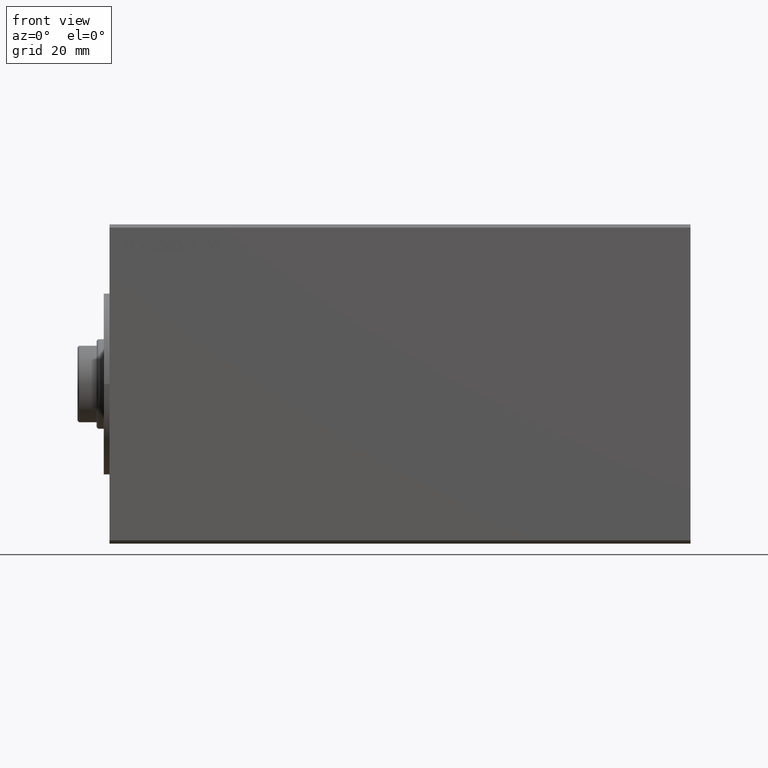
[diagram: clean part render]
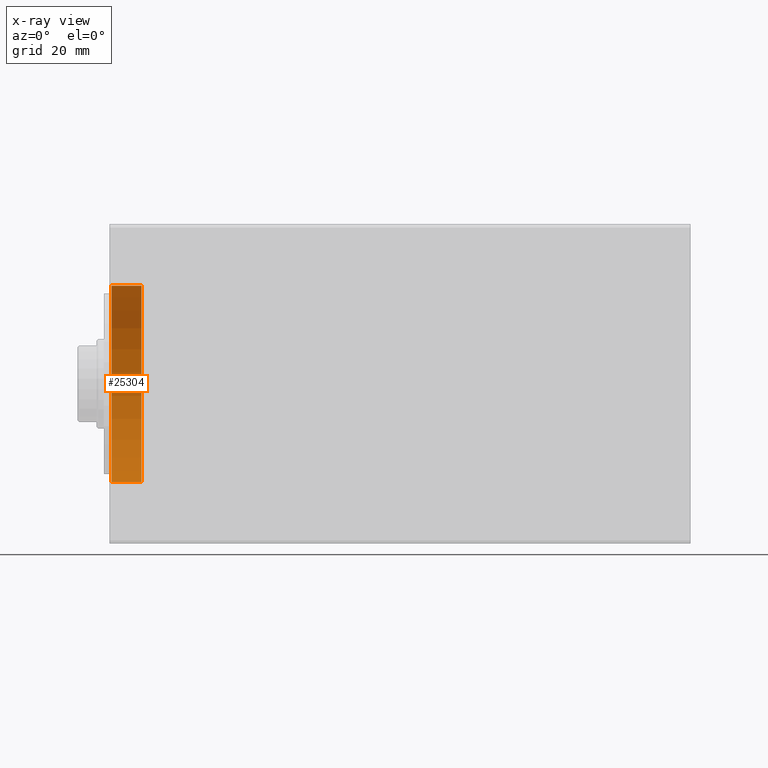
[diagram: x-ray — body ghosted, one internal face saturated and labeled with its STEP entity id]
A machine part, front view, then the same camera in x-ray: the body is ghosted and one INTERNAL B-rep face — a face not visible from any outside direction — is saturated and labeled: STEP entity #25304.
In plain terms, the highlighted cylindrical surface (partial cylindrical patch) has radius 30.75 mm, axis along (-1, -0, -0).
Its self-contained STEP definition (entity closure, byte-faithful):
#1888 = DIRECTION ( 'NONE',  ( -1.000000000000000000, -0.000000000000000000, -0.000000000000000000 ) ) ;
#2388 = VERTEX_POINT ( 'NONE', #27502 ) ;
#3960 = DIRECTION ( 'NONE',  ( -1.000000000000000000, -0.000000000000000000, -0.000000000000000000 ) ) ;
#4000 = CIRCLE ( 'NONE', #20332, 30.75000000000000355 ) ;
#4290 = DIRECTION ( 'NONE',  ( 0.000000000000000000, 0.000000000000000000, -1.000000000000000000 ) ) ;
#5442 = LINE ( 'NONE', #21700, #27535 ) ;
#7997 = EDGE_CURVE ( 'NONE', #38286, #2388, #27615, .T. ) ;
#8080 = CARTESIAN_POINT ( 'NONE',  ( 0.7000000000000512479, 0.000000000000000000, 0.000000000000000000 ) ) ;
#11406 = CARTESIAN_POINT ( 'NONE',  ( 0.7000000000000512479, 3.765788907378111328E-15, -30.75000000000000355 ) ) ;
#14112 = DIRECTION ( 'NONE',  ( -1.000000000000000000, -0.000000000000000000, -0.000000000000000000 ) ) ;
#14600 = ORIENTED_EDGE ( 'NONE', *, *, #7997, .F. ) ;
#15796 = EDGE_CURVE ( 'NONE', #38286, #30881, #27241, .T. ) ;
#18020 = ORIENTED_EDGE ( 'NONE', *, *, #18905, .T. ) ;
#18905 = EDGE_CURVE ( 'NONE', #30881, #23913, #4000, .T. ) ;
#19010 = CYLINDRICAL_SURFACE ( 'NONE', #28692, 30.75000000000000355 ) ;
#20332 = AXIS2_PLACEMENT_3D ( 'NONE', #8080, #24311, #4290 ) ;
#20882 = FACE_OUTER_BOUND ( 'NONE', #21537, .T. ) ;
#21537 = EDGE_LOOP ( 'NONE', ( #28652, #14600, #34618, #18020 ) ) ;
#21700 = CARTESIAN_POINT ( 'NONE',  ( 10.00000000000000000, 3.765788907378111328E-15, -30.75000000000000355 ) ) ;
#22227 = EDGE_CURVE ( 'NONE', #2388, #23913, #5442, .T. ) ;
#23913 = VERTEX_POINT ( 'NONE', #11406 ) ;
#24311 = DIRECTION ( 'NONE',  ( -1.000000000000000000, 0.000000000000000000, 0.000000000000000000 ) ) ;
#25304 = ADVANCED_FACE ( 'NONE', ( #20882 ), #19010, .F. ) ;
#27241 = LINE ( 'NONE', #40610, #42669 ) ;
#27502 = CARTESIAN_POINT ( 'NONE',  ( 10.00000000000000000, 3.765788907378111328E-15, -30.75000000000000355 ) ) ;
#27535 = VECTOR ( 'NONE', #1888, 1000.000000000000000 ) ;
#27615 = CIRCLE ( 'NONE', #41162, 30.75000000000000355 ) ;
#28652 = ORIENTED_EDGE ( 'NONE', *, *, #22227, .F. ) ;
#28692 = AXIS2_PLACEMENT_3D ( 'NONE', #34439, #3960, #31110 ) ;
#30881 = VERTEX_POINT ( 'NONE', #34687 ) ;
#31110 = DIRECTION ( 'NONE',  ( 0.000000000000000000, 0.000000000000000000, 1.000000000000000000 ) ) ;
#33793 = CARTESIAN_POINT ( 'NONE',  ( 10.00000000000000000, 0.000000000000000000, 30.75000000000000355 ) ) ;
#34439 = CARTESIAN_POINT ( 'NONE',  ( 10.00000000000000000, 0.000000000000000000, 0.000000000000000000 ) ) ;
#34618 = ORIENTED_EDGE ( 'NONE', *, *, #15796, .T. ) ;
#34687 = CARTESIAN_POINT ( 'NONE',  ( 0.7000000000000512479, 0.000000000000000000, 30.75000000000000355 ) ) ;
#36925 = DIRECTION ( 'NONE',  ( 0.000000000000000000, 0.000000000000000000, 1.000000000000000000 ) ) ;
#38286 = VERTEX_POINT ( 'NONE', #33793 ) ;
#40610 = CARTESIAN_POINT ( 'NONE',  ( 10.00000000000000000, 0.000000000000000000, 30.75000000000000355 ) ) ;
#41162 = AXIS2_PLACEMENT_3D ( 'NONE', #43389, #43608, #36925 ) ;
#42669 = VECTOR ( 'NONE', #14112, 1000.000000000000000 ) ;
#43389 = CARTESIAN_POINT ( 'NONE',  ( 10.00000000000000000, 0.000000000000000000, 0.000000000000000000 ) ) ;
#43608 = DIRECTION ( 'NONE',  ( -1.000000000000000000, 0.000000000000000000, 0.000000000000000000 ) ) ;